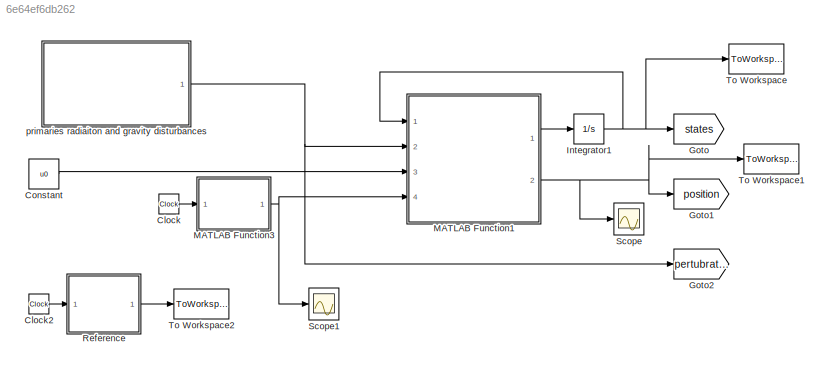
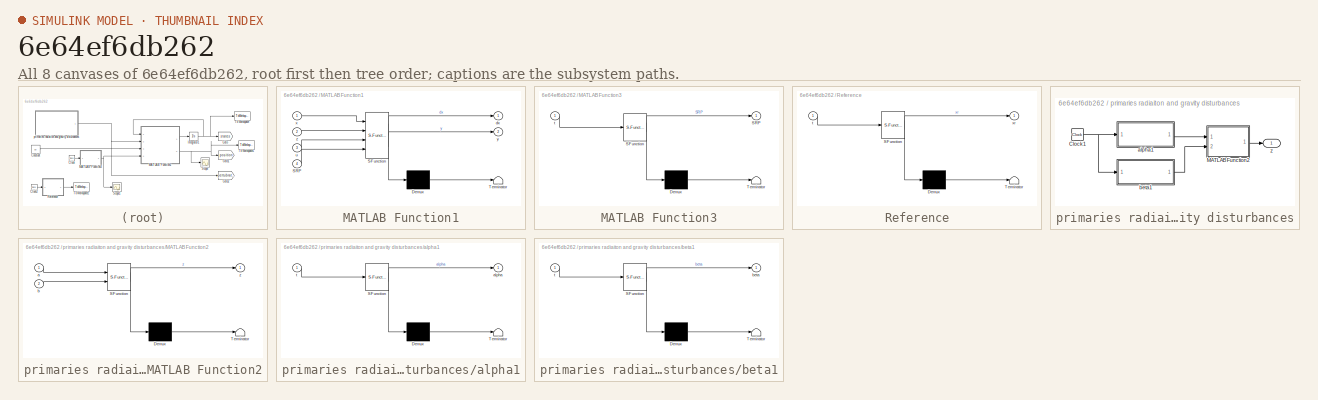
[diagram: thumbnail index - all 8 canvases of the model, root first then tree order]
MODEL slx_6e64ef6db262
KIND model
CONFIG AbsTol = auto
CONFIG EnableMultiTasking = off
CONFIG FixedStep = auto
CONFIG MaxStep = auto
CONFIG MinStep = auto
CONFIG RelTol = 1e-4
CONFIG SampleTimeConstraint = Unconstrained
CONFIG Solver = ode45
CONFIG SolverName = ode45
CONFIG StartTime = 0.0
CONFIG StopTime = simTime
BLOCK [Clock] Clock
BLOCK [Clock] Clock2
BLOCK [Constant] Constant
  Value = u0
BLOCK [Goto] Goto
  GotoTag = states
BLOCK [Goto] Goto1
  GotoTag = position
BLOCK [Goto] Goto2
  GotoTag = pertubration
BLOCK [Integrator] Integrator1
  InitialCondition = x0
  Ports = [1, 1]
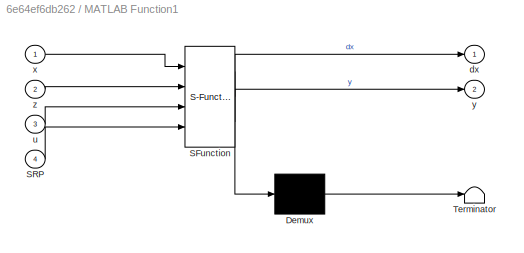
BLOCK [SubSystem] MATLAB Function1
  ErrorFcn = Stateflow.Translate.translate
  PermitHierarchicalResolution = ExplicitOnly
  Ports = [4, 2]
  RequestExecContextInheritance = off
  SFBlockType = MATLAB Function
  TreatAsAtomicUnit = on
BLOCK [Demux] MATLAB Function1/ Demux 
  Outputs = 1
  Ports = [1, 1]
BLOCK [S-Function] MATLAB Function1/ SFunction 
  EnableBusSupport = on
  FunctionName = sf_sfun
  Parameters = mu
  PortCounts = [4 3]
  Ports = [4, 3]
  SFcnIsStateOwnerBlock = off
  SFunctionDeploymentMode = off
  Tag = Stateflow S-Function 1
BLOCK [Terminator] MATLAB Function1/ Terminator 
BLOCK [Inport] MATLAB Function1/SRP
  IconDisplay = Port number
  Port = 4
BLOCK [Outport] MATLAB Function1/dx
  IconDisplay = Port number
BLOCK [Inport] MATLAB Function1/u
  IconDisplay = Port number
  Port = 3
BLOCK [Inport] MATLAB Function1/x
  IconDisplay = Port number
BLOCK [Outport] MATLAB Function1/y
  IconDisplay = Port number
  Port = 2
BLOCK [Inport] MATLAB Function1/z
  IconDisplay = Port number
  Port = 2
BLOCK [SubSystem] MATLAB Function3
  ErrorFcn = Stateflow.Translate.translate
  PermitHierarchicalResolution = ExplicitOnly
  Ports = [1, 1]
  RequestExecContextInheritance = off
  SFBlockType = MATLAB Function
  TreatAsAtomicUnit = on
BLOCK [Demux] MATLAB Function3/ Demux 
  Outputs = 1
  Ports = [1, 1]
BLOCK [S-Function] MATLAB Function3/ SFunction 
  EnableBusSupport = on
  FunctionName = sf_sfun
  Parameters = Gsc,sped,srp,zeta
  PortCounts = [1 2]
  Ports = [1, 2]
  SFcnIsStateOwnerBlock = off
  SFunctionDeploymentMode = off
  Tag = Stateflow S-Function 3
BLOCK [Terminator] MATLAB Function3/ Terminator 
BLOCK [Outport] MATLAB Function3/SRP
  IconDisplay = Port number
BLOCK [Inport] MATLAB Function3/t
  IconDisplay = Port number
BLOCK [SubSystem] Reference
  ErrorFcn = Stateflow.Translate.translate
  PermitHierarchicalResolution = ExplicitOnly
  Ports = [1, 1]
  RequestExecContextInheritance = off
  SFBlockType = MATLAB Function
  TreatAsAtomicUnit = on
BLOCK [Demux] Reference/ Demux 
  Outputs = 1
  Ports = [1, 1]
BLOCK [S-Function] Reference/ SFunction 
  EnableBusSupport = on
  FunctionName = sf_sfun
  Parameters = L2,Omega,Omega_z,c,h,k,phi,ref_select
  PortCounts = [1 2]
  Ports = [1, 2]
  SFcnIsStateOwnerBlock = off
  SFunctionDeploymentMode = off
  Tag = Stateflow S-Function 2
BLOCK [Terminator] Reference/ Terminator 
BLOCK [Inport] Reference/t
  IconDisplay = Port number
BLOCK [Outport] Reference/xr
  IconDisplay = Port number
BLOCK [Scope] Scope
  Floating = off
  NumInputPorts = 1
  Ports = [1]
  ScopeSpecificationString = Simulink.scopes.TimeScopeBlockCfg('CurrentConfiguration', extmgr.ConfigurationSet(extmgr.Configuration('Core','General UI',true),extmgr.Configuration('Core','Source UI',true),extmgr.Configuration('Sources','WiredSimulink',true,'DataLoggingVariableName','ScopeData1'),extmgr.Configuration('Visuals','Time Domain',true,'SerializedDisplays',{struct('MinYLimReal','-0.26036','MaxYLimReal','1.35737','YLab...<+1525ch>
BLOCK [Scope] Scope1
  Floating = off
  NumInputPorts = 1
  Ports = [1]
  ScopeSpecificationString = Simulink.scopes.TimeScopeBlockCfg('CurrentConfiguration', extmgr.ConfigurationSet(extmgr.Configuration('Core','General UI',true),extmgr.Configuration('Core','Source UI',true),extmgr.Configuration('Sources','WiredSimulink',true,'DataLoggingVariableName','ScopeData2'),extmgr.Configuration('Visuals','Time Domain',true,'SerializedDisplays',{struct('MinYLimReal','-1.00000','MaxYLimReal','1.00000','YLab...<+1384ch>
BLOCK [ToWorkspace] To Workspace
  FixptAsFi = on
  MaxDataPoints = inf
  Ports = [1]
  SampleTime = 10^-3
  Save2DSignal = 2-D array (concatenate along first dimension)
  VariableName = states
BLOCK [ToWorkspace] To Workspace1
  FixptAsFi = on
  MaxDataPoints = inf
  Ports = [1]
  SampleTime = 10^-3
  Save2DSignal = 2-D array (concatenate along first dimension)
  VariableName = position
BLOCK [ToWorkspace] To Workspace2
  FixptAsFi = on
  MaxDataPoints = inf
  Ports = [1]
  SampleTime = 10^-3
  Save2DSignal = 2-D array (concatenate along first dimension)
  VariableName = ref
BLOCK [SubSystem] primaries radiaiton and gravity disturbances
  Ports = [0, 1]
  RequestExecContextInheritance = off
BLOCK [Clock] primaries radiaiton and gravity disturbances/Clock1
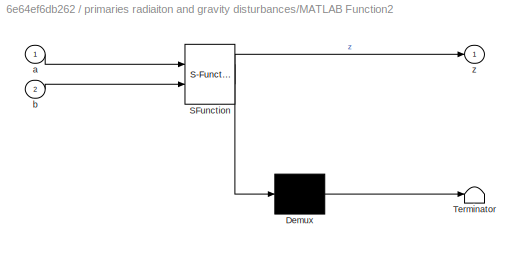
BLOCK [SubSystem] primaries radiaiton and gravity disturbances/MATLAB Function2
  ErrorFcn = Stateflow.Translate.translate
  PermitHierarchicalResolution = ExplicitOnly
  Ports = [2, 1]
  RequestExecContextInheritance = off
  SFBlockType = MATLAB Function
  TreatAsAtomicUnit = on
BLOCK [Demux] primaries radiaiton and gravity disturbances/MATLAB Function2/ Demux 
  Outputs = 1
  Ports = [1, 1]
BLOCK [S-Function] primaries radiaiton and gravity disturbances/MATLAB Function2/ SFunction 
  EnableBusSupport = on
  FunctionName = sf_sfun
  Parameters = disturbance,mu
  PortCounts = [2 2]
  Ports = [2, 2]
  SFcnIsStateOwnerBlock = off
  SFunctionDeploymentMode = off
  Tag = Stateflow S-Function 4
BLOCK [Terminator] primaries radiaiton and gravity disturbances/MATLAB Function2/ Terminator 
BLOCK [Inport] primaries radiaiton and gravity disturbances/MATLAB Function2/a
  IconDisplay = Port number
BLOCK [Inport] primaries radiaiton and gravity disturbances/MATLAB Function2/b
  IconDisplay = Port number
  Port = 2
BLOCK [Outport] primaries radiaiton and gravity disturbances/MATLAB Function2/z
  IconDisplay = Port number
BLOCK [SubSystem] primaries radiaiton and gravity disturbances/alpha1
  ErrorFcn = Stateflow.Translate.translate
  PermitHierarchicalResolution = ExplicitOnly
  Ports = [1, 1]
  RequestExecContextInheritance = off
  SFBlockType = MATLAB Function
  TreatAsAtomicUnit = on
BLOCK [Demux] primaries radiaiton and gravity disturbances/alpha1/ Demux 
  Outputs = 1
  Ports = [1, 1]
BLOCK [S-Function] primaries radiaiton and gravity disturbances/alpha1/ SFunction 
  EnableBusSupport = on
  FunctionName = sf_sfun
  Parameters = a,e,phi
  PortCounts = [1 2]
  Ports = [1, 2]
  SFcnIsStateOwnerBlock = off
  SFunctionDeploymentMode = off
  Tag = Stateflow S-Function 5
BLOCK [Terminator] primaries radiaiton and gravity disturbances/alpha1/ Terminator 
BLOCK [Outport] primaries radiaiton and gravity disturbances/alpha1/alpha
  IconDisplay = Port number
BLOCK [Inport] primaries radiaiton and gravity disturbances/alpha1/t
  IconDisplay = Port number
BLOCK [SubSystem] primaries radiaiton and gravity disturbances/beta1
  ErrorFcn = Stateflow.Translate.translate
  PermitHierarchicalResolution = ExplicitOnly
  Ports = [1, 1]
  RequestExecContextInheritance = off
  SFBlockType = MATLAB Function
  TreatAsAtomicUnit = on
BLOCK [Demux] primaries radiaiton and gravity disturbances/beta1/ Demux 
  Outputs = 1
  Ports = [1, 1]
BLOCK [S-Function] primaries radiaiton and gravity disturbances/beta1/ SFunction 
  EnableBusSupport = on
  FunctionName = sf_sfun
  Parameters = b,e,phi
  PortCounts = [1 2]
  Ports = [1, 2]
  SFcnIsStateOwnerBlock = off
  SFunctionDeploymentMode = off
  Tag = Stateflow S-Function 6
BLOCK [Terminator] primaries radiaiton and gravity disturbances/beta1/ Terminator 
BLOCK [Outport] primaries radiaiton and gravity disturbances/beta1/beta
  IconDisplay = Port number
BLOCK [Inport] primaries radiaiton and gravity disturbances/beta1/t
  IconDisplay = Port number
BLOCK [Outport] primaries radiaiton and gravity disturbances/z
  IconDisplay = Port number
LINE Clock2:1 -> Reference:1
LINE Clock:1 -> MATLAB Function3:1
LINE Constant:1 -> MATLAB Function1:3
NET Integrator1:1 -> Goto:1, MATLAB Function1:1, To Workspace:1
LINE MATLAB Function1:1 -> Integrator1:1
NET MATLAB Function1:2 -> Goto1:1, Scope:1, To Workspace1:1
NET MATLAB Function3:1 -> MATLAB Function1:4, Scope1:1
LINE Reference:1 -> To Workspace2:1
NET primaries radiaiton and gravity disturbances/Clock1:1 -> primaries radiaiton and gravity disturbances/alpha1:1, primaries radiaiton and gravity disturbances/beta1:1
LINE primaries radiaiton and gravity disturbances/MATLAB Function2:1 -> primaries radiaiton and gravity disturbances/z:1
LINE primaries radiaiton and gravity disturbances/alpha1:1 -> primaries radiaiton and gravity disturbances/MATLAB Function2:1
LINE primaries radiaiton and gravity disturbances/beta1:1 -> primaries radiaiton and gravity disturbances/MATLAB Function2:2
NET primaries radiaiton and gravity disturbances:1 -> Goto2:1, MATLAB Function1:2
note: NET lines group one-source signal fan-out (src -> all destinations, sorted); 1:1 wires keep LINE
CHART MATLAB Function1 states=1 transitions=1
  STATE_LABEL 'eML_blk_kernel()'
  STATE_LABEL 'SCRIPT:\nfunction [dx, y] = Satellite(x,z, u, mu, SRP)\n\nx1 = x(1:3);\nx2 = x(4:6);\n\nM = [-1 0 0;\n    0 -1 0;\n    0 0 0];\n\nN = [0 -1 0;\n    1 0 0;\n    0 0 0];\n\nd1r = [-mu - z(4)/(1-mu);0;0];\nd2r = [1-mu + z(4)/mu;0;0];\n\ned1 = x1 - d1r;\nabsed1 = sqrt(ed1(1)^2+ed1(2)^2+ed1(3)^2);\ned2 = x1 - d2r;\nabsed2 = sqrt(ed2(1)^2+ed2(2)^2+ed2(3)^2);\n\nf1 = x2;\nf2 = -M*x1 - 2*N*x2 - (2*M*x1 + 2*N*x2)*z(1) ...\n      ...<+157ch>'
CHART Reference states=1 transitions=1
  STATE_LABEL 'eML_blk_kernel()'
  STATE_LABEL 'SCRIPT:\nfunction xr = refer(t,k,c,Omega,Omega_z,L2,h,ref_select,phi)\n%#codegen\n\nSeq = [L2;0;0;0;0;0];\ne = exp(1);\n\nho1 = [(-k*(1-c(1)+Omega^2)/(2*Omega))*cos(Omega*t);\n       k*sin(Omega*t);\n       k*cos(Omega_z*t)];\n   \ndiffho1 = [(k*(1-c(1)+Omega^2)/2)*sin(Omega*t);\n           Omega*k*cos(Omega*t);\n           -Omega_z*k*sin(Omega_z*t)];\n       \nho2 = ho1 + [e*h(1)*cos(t+phi);\n             e*h(2)...<+257ch>'
CHART MATLAB Function3 states=1 transitions=1
  STATE_LABEL 'eML_blk_kernel()'
  STATE_LABEL 'SCRIPT:\nfunction SRP = fcn(srp, Gsc, sped, zeta,t)\n\nif srp == 1\n    SRP = [(Gsc/sped)*(cos(zeta*t))^2;(Gsc/sped)*(sin(zeta*t))^2;0];\nelse\n    SRP = [0;0;0];\nend\n'
CHART primaries radiaiton and gravity disturbances/MATLAB Function2 states=1 transitions=1
  STATE_LABEL 'eML_blk_kernel()'
  STATE_LABEL 'SCRIPT:\nfunction z = z(a,b,mu, disturbance)\n%#codegen\nif disturbance == 1\n    z = [b;mu*(1-mu)*a];\nelse\n    z = zeros(4,1);\nend'
CHART primaries radiaiton and gravity disturbances/alpha1 states=1 transitions=1
  STATE_LABEL 'eML_blk_kernel()'
  STATE_LABEL 'SCRIPT:\nfunction alpha = a(t,a,phi,e)\n%#codegen\n\na1 = a(1)*e*cos(t+phi);\nalpha = a1;\n'
CHART primaries radiaiton and gravity disturbances/beta1 states=1 transitions=1
  STATE_LABEL 'eML_blk_kernel()'
  STATE_LABEL 'SCRIPT:\nfunction beta = b(t,b,phi,e)\n%#codegen\nb1 = b(1)*e*cos(t+phi);\nbd = -b(1)*e*sin(t+phi);\nbeta = [b1;0;bd];\n'
